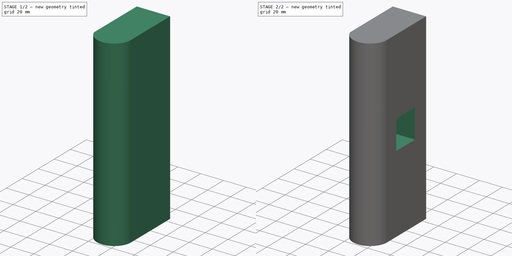
[diagram: build sequence overview — one tinted view per stage of 2, left to right]
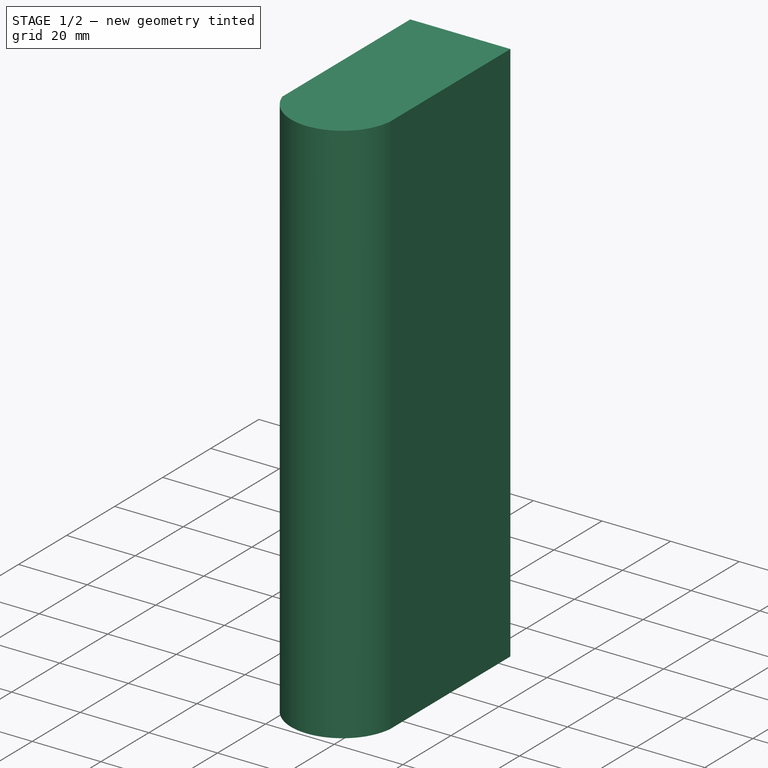
[diagram: stage 1 of 2 — iso view after this stage's code; geometry added in this stage tinted green]
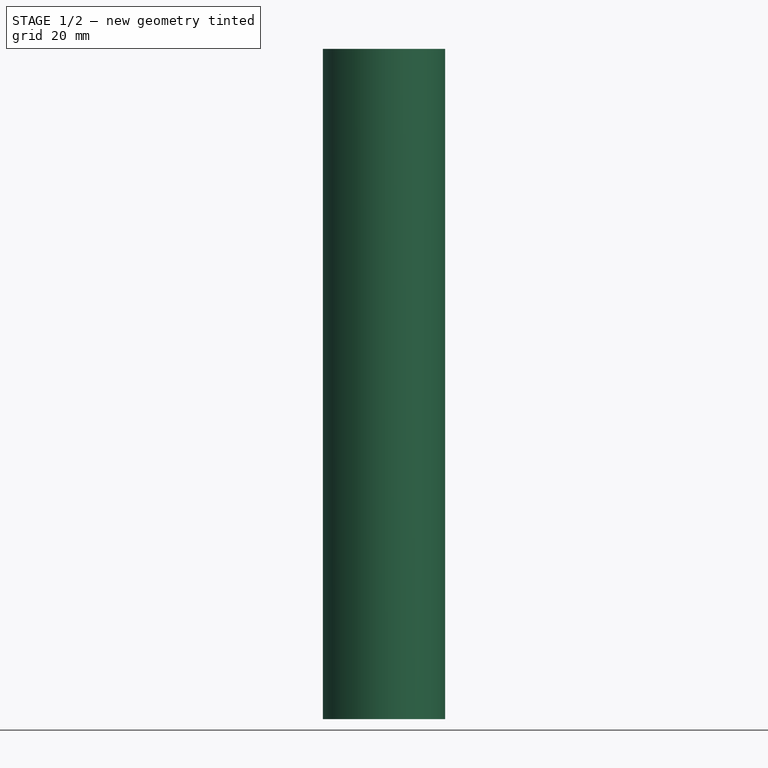
[diagram: stage 1 of 2 — front view after this stage's code; geometry added in this stage tinted green]
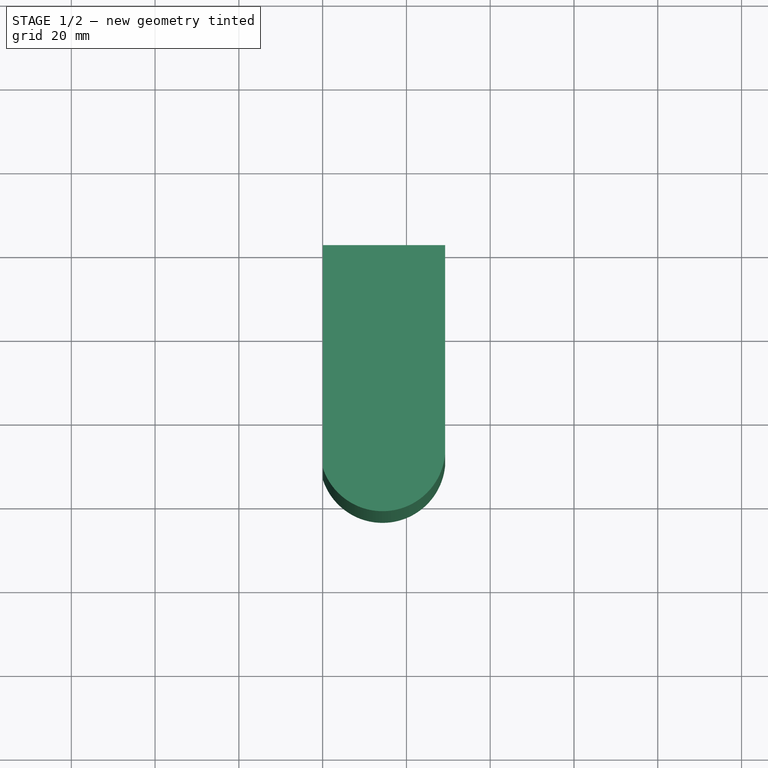
[diagram: stage 1 of 2 — top view after this stage's code; geometry added in this stage tinted green]
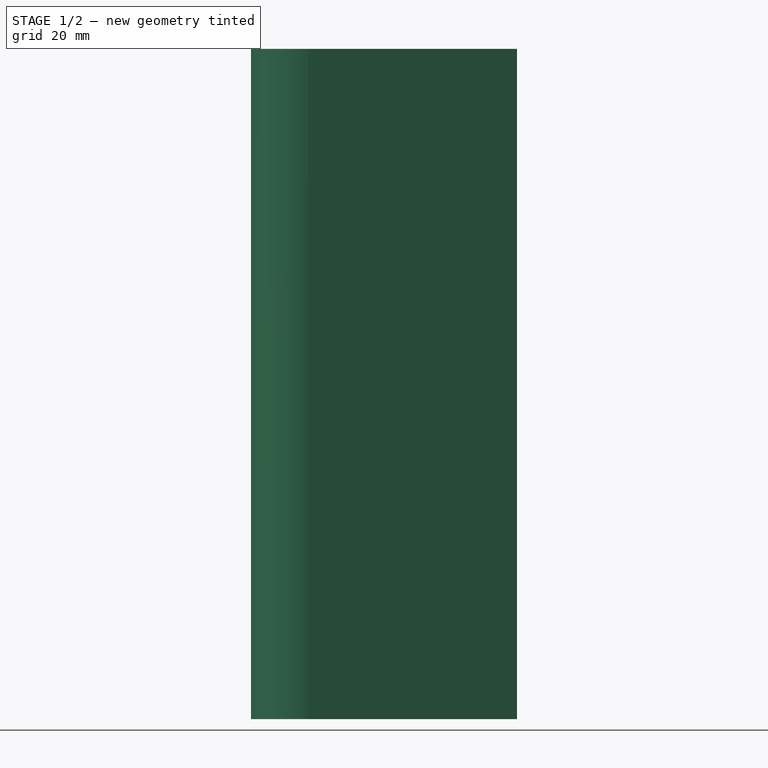
[diagram: stage 1 of 2 — right view after this stage's code; geometry added in this stage tinted green]
FCSTD DOCUMENT  (FreeCAD 0.16R6712 (Git))
Label: tut2
License: All rights reserved
LicenseURL: http://en.wikipedia.org/wiki/All_rights_reserved
objects: Sketcher::SketchObject×2, PartDesign::Pad×1, PartDesign::Pocket×1
note: 6 computed .brp shape members not serialized (recipe doc carries the construction recipe); baked Part::Feature solids carry a one-line shape summary decoded from their .brp

FEATURE [Sketcher::SketchObject] Sketch  label="Base"
  sketch-geometry (4):
    g0: LineSegment StartX=0.0600261 StartY=0.138063 StartZ=0 EndX=29.2335 EndY=0.138063 EndZ=0
    g1: LineSegment StartX=29.2335 StartY=0.138063 StartZ=0 EndX=29.2335 EndY=-49.8041 EndZ=0
    g2: ArcOfCircle CenterX=14.3009 CenterY=-48.3844 CenterZ=0 NormalX=0 NormalY=0 NormalZ=1 Radius=15 StartAngle=3.4611 EndAngle=6.18839
    g3: LineSegment StartX=0.0600261 StartY=-53.0959 StartZ=0 EndX=0.0600261 EndY=0.138063 EndZ=0
  constraints (11):
    c: Horizontal(g0)
    c: Coincident(g1,g0)
    c: Vertical(g1)
    c: Coincident(g2,g1)
    c: Coincident(g0,g3)
    c: Vertical(g3)
    c: Radius(g2) = 15
    c: Coincident(g3,g2)
    c: DistanceY(g3,g3) = 53.234
    c: DistanceY(g1,g1) = 49.9422
    c: DistanceX(g0,g0) = 29.1735
FEATURE [PartDesign::Pad] Pad
  Length = 160
  Length2 = 100
  Sketch = -> Sketch
  Type = 0
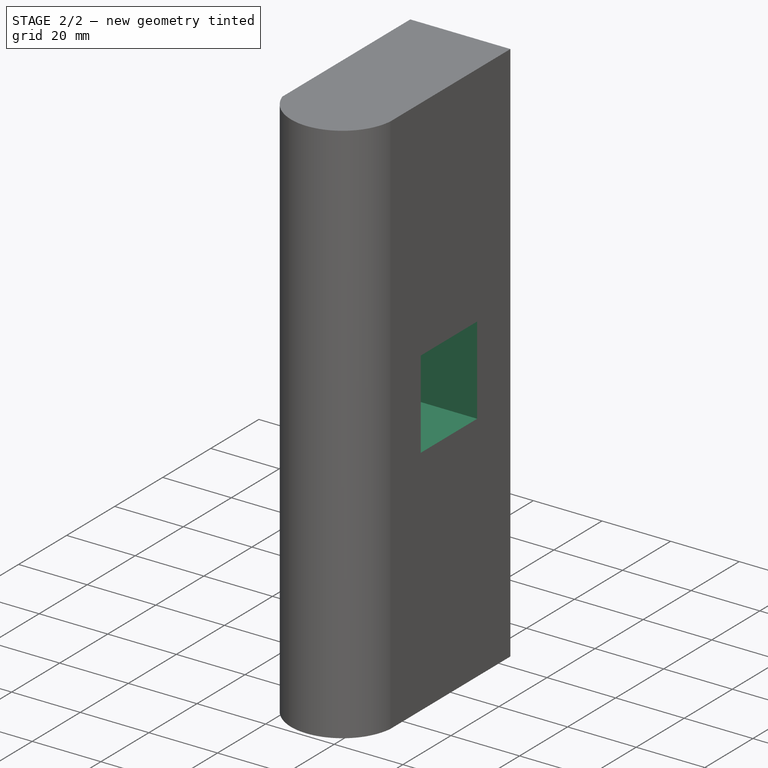
[diagram: stage 2 of 2 — iso view after this stage's code; geometry added in this stage tinted green]
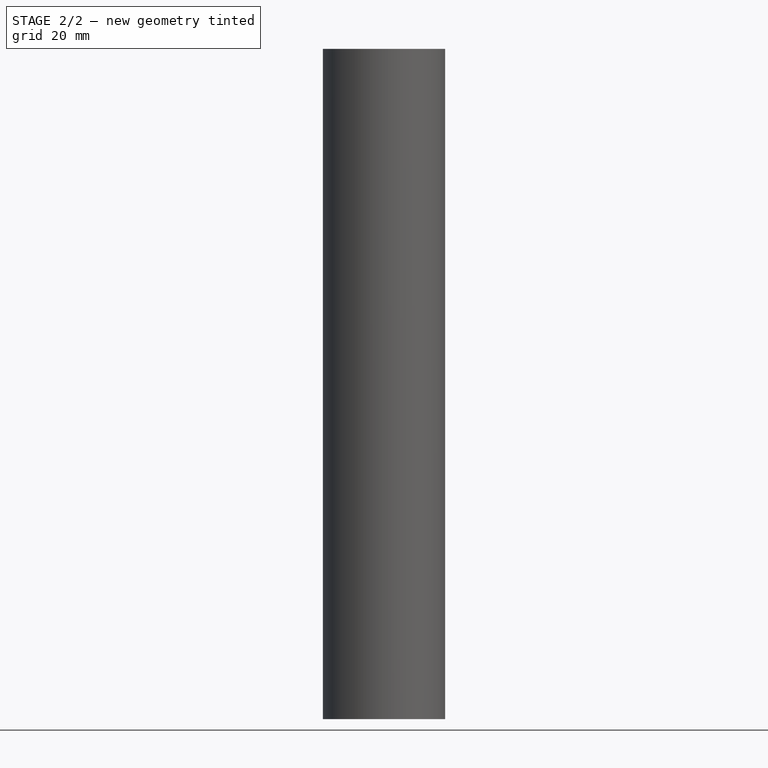
[diagram: stage 2 of 2 — front view after this stage's code; geometry added in this stage tinted green]
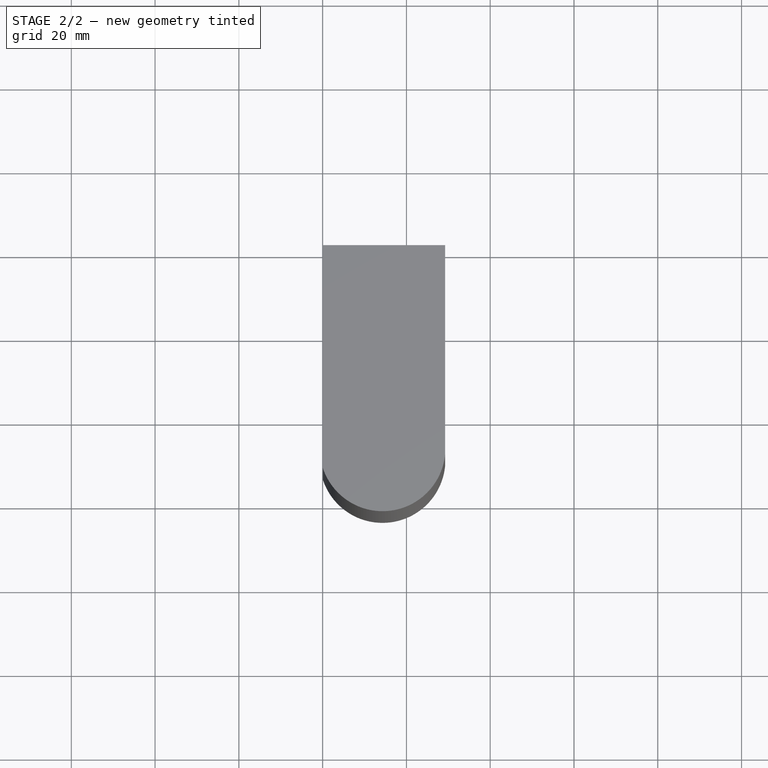
[diagram: stage 2 of 2 — top view after this stage's code; geometry added in this stage tinted green]
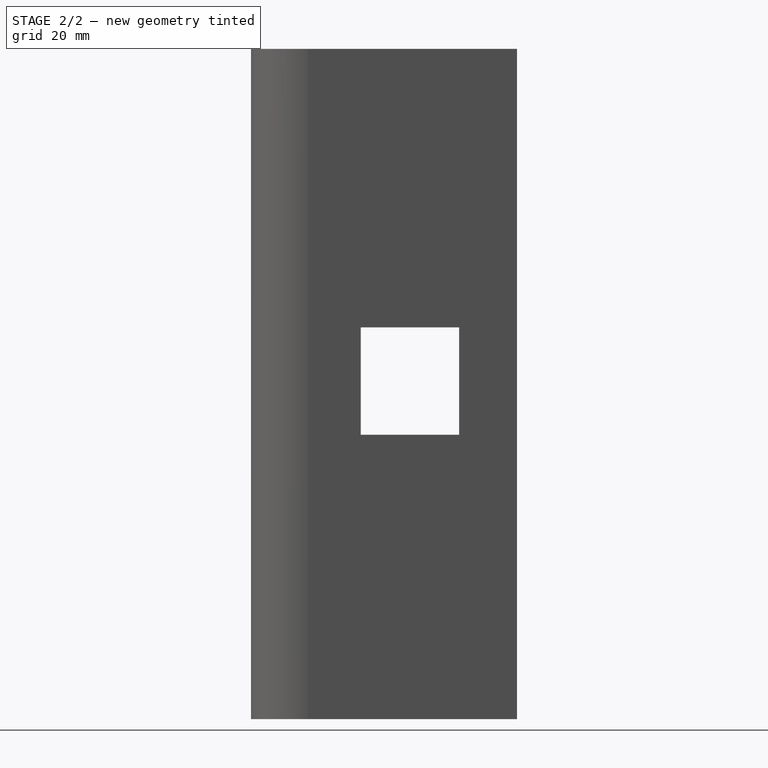
[diagram: stage 2 of 2 — right view after this stage's code; geometry added in this stage tinted green]
FEATURE [Sketcher::SketchObject] Sketch001
  Placement = pos=(29.2335,0,0) rot=(0.57735,0.57735,0.57735;2.0944rad)
  Support = -> Pad [Face2]
  sketch-geometry (4):
    g0: LineSegment StartX=-37.1606 StartY=93.5125 StartZ=0 EndX=-13.6779 EndY=93.5125 EndZ=0
    g1: LineSegment StartX=-13.6779 StartY=93.5125 StartZ=0 EndX=-13.6779 EndY=67.895 EndZ=0
    g2: LineSegment StartX=-13.6779 StartY=67.895 StartZ=0 EndX=-37.1606 EndY=67.895 EndZ=0
    g3: LineSegment StartX=-37.1606 StartY=67.895 StartZ=0 EndX=-37.1606 EndY=93.5125 EndZ=0
  constraints (12):
    c: Coincident(g0,g1)
    c: Coincident(g1,g2)
    c: Coincident(g2,g3)
    c: Coincident(g3,g0)
    c: Horizontal(g0)
    c: Horizontal(g2)
    c: Vertical(g1)
    c: Vertical(g3)
    c: DistanceY(g3,g3) = 25.6175
    c: DistanceY(g1,g1) = 25.6175
    c: DistanceX(g0,g0) = 23.4827
    c: DistanceX(g2,g2) = 23.4827
FEATURE [PartDesign::Pocket] Pocket
  Length = 5
  Sketch = -> Sketch001
  Type = 1
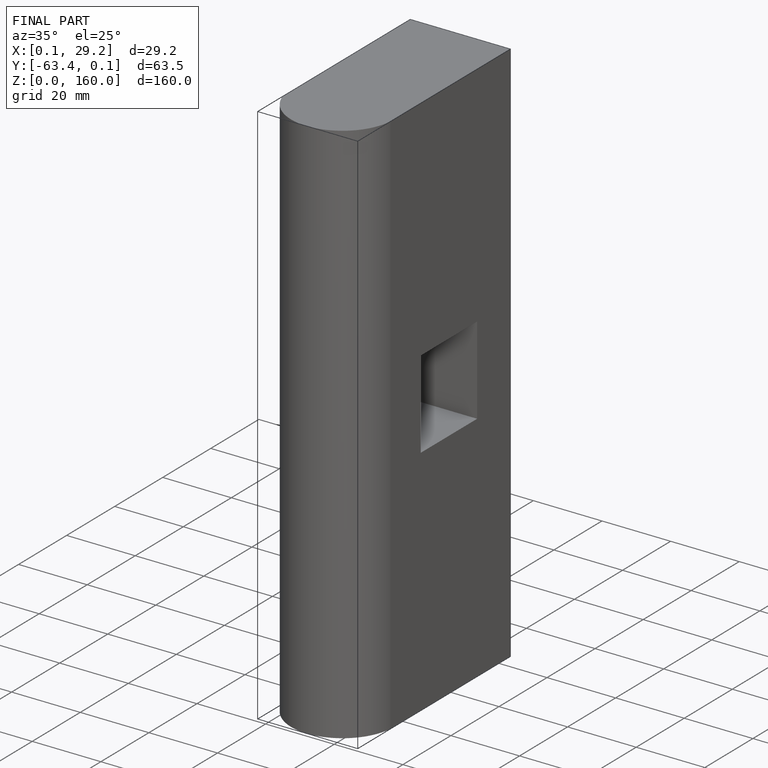
[diagram: finished part — iso view with bounding-box wireframe]
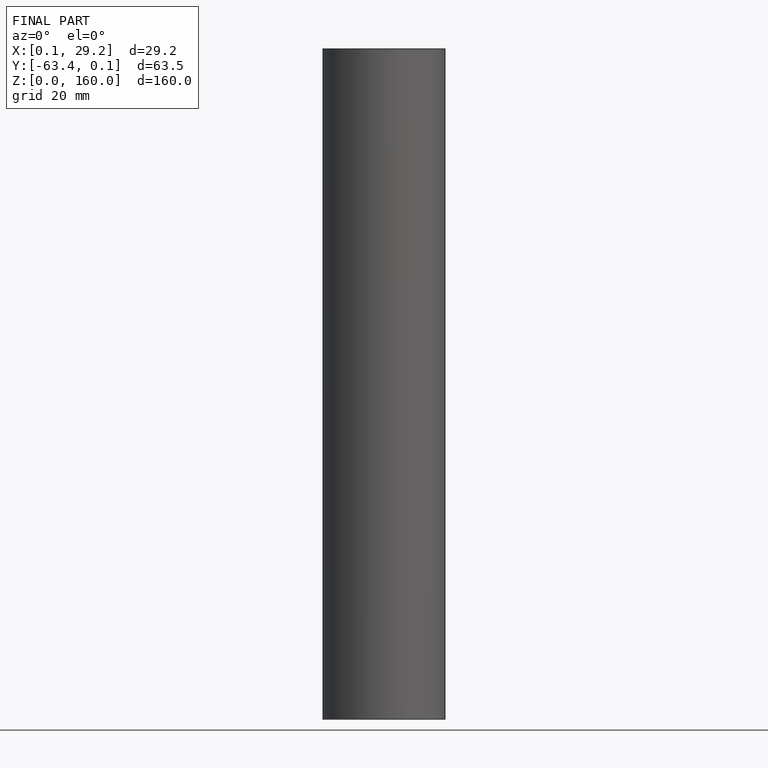
[diagram: finished part — front view with bounding-box wireframe]
